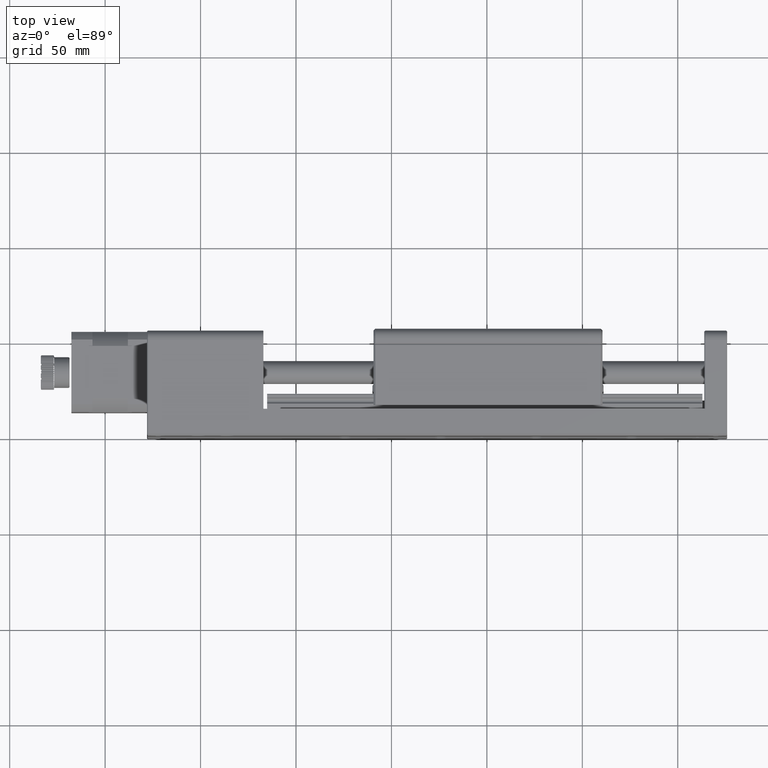
[diagram: clean part render]
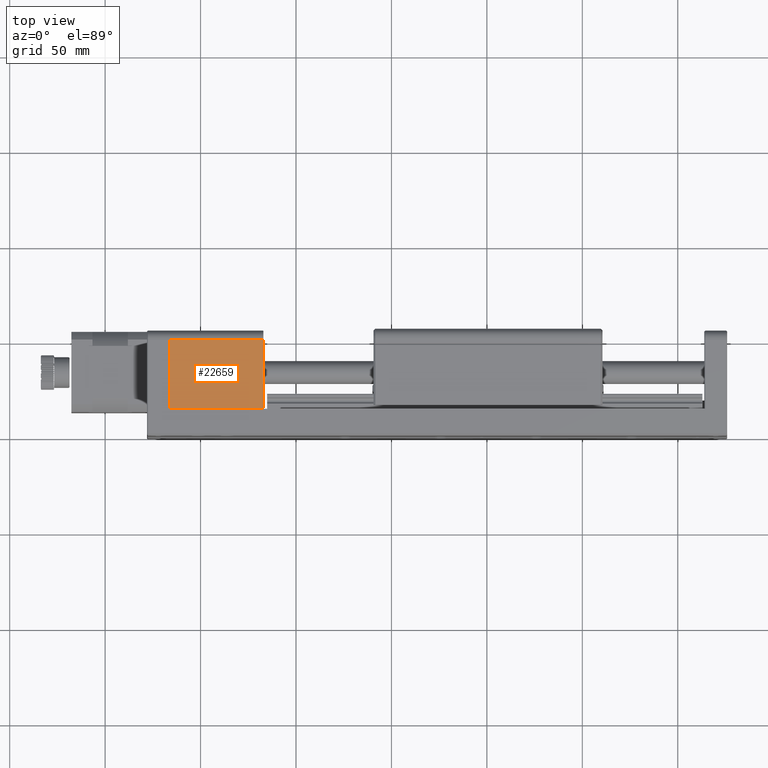
[diagram: same view with one face highlighted and labeled with its STEP entity id]
A machine part, top view. The second image highlights one B-rep face of the part: STEP entity #22659.
In plain terms, the highlighted planar face has unit normal (-0, -0, -1).
Its self-contained STEP definition (entity closure, byte-faithful):
#913 = EDGE_LOOP ( 'NONE', ( #30359, #21238, #43146, #45865 ) ) ;
#3954 = VERTEX_POINT ( 'NONE', #36156 ) ;
#5744 = CARTESIAN_POINT ( 'NONE',  ( -216.0923048561599300, 50.00000000000000000, 99.77887723323785000 ) ) ;
#6124 = DIRECTION ( 'NONE',  ( 1.000000000000000000, -0.0000000000000000000, 0.0000000000000000000 ) ) ;
#6847 = CARTESIAN_POINT ( 'NONE',  ( -167.2923048561599200, 50.00000000000000000, 99.77887723323785000 ) ) ;
#6933 = CARTESIAN_POINT ( 'NONE',  ( -216.0923048561599300, 13.99999999999999100, 99.77887723323785000 ) ) ;
#9398 = DIRECTION ( 'NONE',  ( -1.000000000000000000, -0.0000000000000000000, -0.0000000000000000000 ) ) ;
#13034 = LINE ( 'NONE', #6847, #27915 ) ;
#13258 = EDGE_CURVE ( 'NONE', #16137, #46893, #13034, .T. ) ;
#16137 = VERTEX_POINT ( 'NONE', #22883 ) ;
#16377 = EDGE_CURVE ( 'NONE', #46893, #45250, #47353, .T. ) ;
#17897 = VECTOR ( 'NONE', #6124, 1000.000000000000000 ) ;
#20555 = VECTOR ( 'NONE', #9398, 1000.000000000000000 ) ;
#21238 = ORIENTED_EDGE ( 'NONE', *, *, #13258, .T. ) ;
#22255 = DIRECTION ( 'NONE',  ( -0.0000000000000000000, -1.387778780781445400E-016, -1.000000000000000000 ) ) ;
#22659 = ADVANCED_FACE ( 'NONE', ( #40170 ), #45355, .F. ) ;
#22883 = CARTESIAN_POINT ( 'NONE',  ( -167.2923048561599200, 13.99999999999999100, 99.77887723323785000 ) ) ;
#27915 = VECTOR ( 'NONE', #37319, 1000.000000000000000 ) ;
#28371 = CARTESIAN_POINT ( 'NONE',  ( -216.0923048561599300, 50.00000000000000000, 99.77887723323785000 ) ) ;
#29374 = DIRECTION ( 'NONE',  ( 0.0000000000000000000, 1.000000000000000000, -1.387778780781445400E-016 ) ) ;
#30042 = CARTESIAN_POINT ( 'NONE',  ( -216.0923048561599300, 13.99999999999999100, 99.77887723323785000 ) ) ;
#30359 = ORIENTED_EDGE ( 'NONE', *, *, #43514, .T. ) ;
#32665 = AXIS2_PLACEMENT_3D ( 'NONE', #6933, #22255, #41753 ) ;
#36156 = CARTESIAN_POINT ( 'NONE',  ( -216.0923048561599300, 13.99999999999999100, 99.77887723323785000 ) ) ;
#37319 = DIRECTION ( 'NONE',  ( 0.0000000000000000000, 1.000000000000000000, -1.387778780781445400E-016 ) ) ;
#39945 = LINE ( 'NONE', #40938, #17897 ) ;
#40170 = FACE_OUTER_BOUND ( 'NONE', #913, .T. ) ;
#40938 = CARTESIAN_POINT ( 'NONE',  ( -216.0923048561599300, 13.99999999999999100, 99.77887723323785000 ) ) ;
#41753 = DIRECTION ( 'NONE',  ( -1.000000000000000000, 0.0000000000000000000, 0.0000000000000000000 ) ) ;
#43146 = ORIENTED_EDGE ( 'NONE', *, *, #16377, .T. ) ;
#43514 = EDGE_CURVE ( 'NONE', #3954, #16137, #39945, .T. ) ;
#45250 = VERTEX_POINT ( 'NONE', #5744 ) ;
#45355 = PLANE ( 'NONE',  #32665 ) ;
#45403 = EDGE_CURVE ( 'NONE', #3954, #45250, #46331, .T. ) ;
#45802 = CARTESIAN_POINT ( 'NONE',  ( -167.2923048561599200, 50.00000000000000000, 99.77887723323785000 ) ) ;
#45865 = ORIENTED_EDGE ( 'NONE', *, *, #45403, .F. ) ;
#46331 = LINE ( 'NONE', #30042, #49346 ) ;
#46893 = VERTEX_POINT ( 'NONE', #45802 ) ;
#47353 = LINE ( 'NONE', #28371, #20555 ) ;
#49346 = VECTOR ( 'NONE', #29374, 1000.000000000000000 ) ;